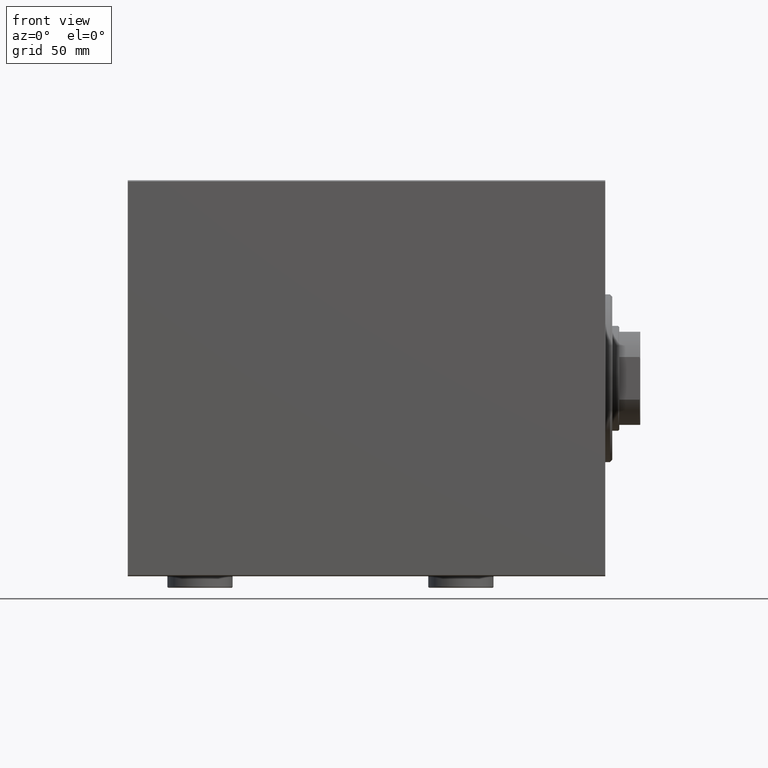
[diagram: clean part render]
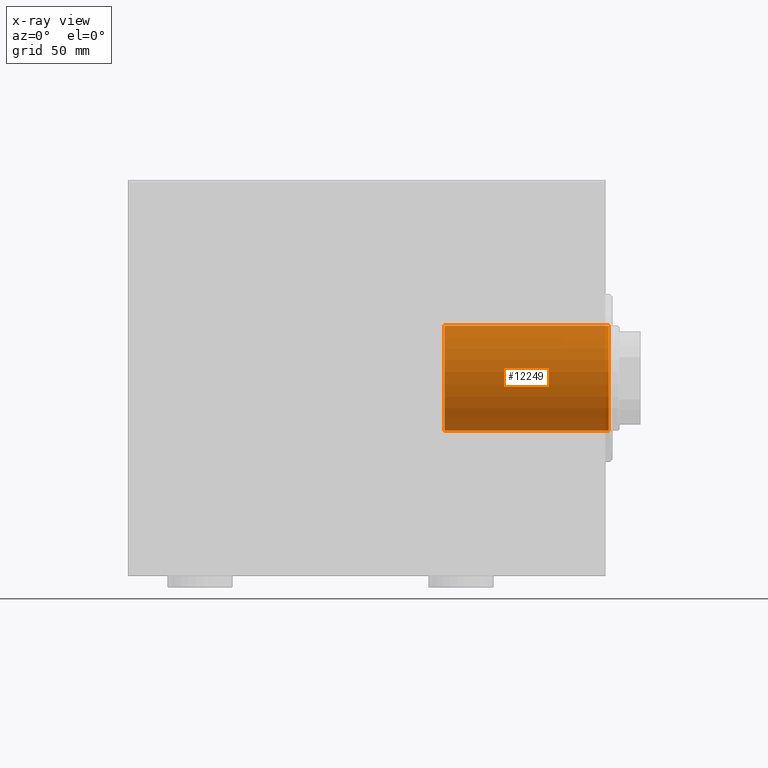
[diagram: x-ray — body ghosted, one internal face saturated and labeled with its STEP entity id]
A machine part, front view, then the same camera in x-ray: the body is ghosted and one INTERNAL B-rep face — a face not visible from any outside direction — is saturated and labeled: STEP entity #12249.
In plain terms, the highlighted cylindrical surface (partial cylindrical patch) has radius 22.5 mm, axis along (1, 0, 0).
Its self-contained STEP definition (entity closure, byte-faithful):
#26 = DIRECTION ( 'NONE',  ( 1.000000000000000000, 0.000000000000000000, 0.000000000000000000 ) ) ;
#36 = CARTESIAN_POINT ( 'NONE',  ( 1.500000000000001332, 0.000000000000000000, -22.50000000000000355 ) ) ;
#1530 = DIRECTION ( 'NONE',  ( 0.000000000000000000, 0.000000000000000000, -1.000000000000000000 ) ) ;
#3075 = DIRECTION ( 'NONE',  ( 0.000000000000000000, 0.000000000000000000, -1.000000000000000000 ) ) ;
#3164 = EDGE_CURVE ( 'NONE', #43630, #16437, #16630, .T. ) ;
#4361 = EDGE_LOOP ( 'NONE', ( #16699, #12384, #22781, #8400 ) ) ;
#4662 = CIRCLE ( 'NONE', #41219, 22.50000000000000355 ) ;
#5435 = DIRECTION ( 'NONE',  ( 0.000000000000000000, 0.000000000000000000, -1.000000000000000000 ) ) ;
#5627 = AXIS2_PLACEMENT_3D ( 'NONE', #24543, #26, #3075 ) ;
#6667 = VECTOR ( 'NONE', #29401, 1000.000000000000000 ) ;
#8400 = ORIENTED_EDGE ( 'NONE', *, *, #42916, .F. ) ;
#9403 = CYLINDRICAL_SURFACE ( 'NONE', #39531, 22.50000000000000355 ) ;
#12249 = ADVANCED_FACE ( 'NONE', ( #36759 ), #9403, .F. ) ;
#12384 = ORIENTED_EDGE ( 'NONE', *, *, #3164, .T. ) ;
#16437 = VERTEX_POINT ( 'NONE', #20185 ) ;
#16630 = LINE ( 'NONE', #34161, #17604 ) ;
#16699 = ORIENTED_EDGE ( 'NONE', *, *, #28959, .F. ) ;
#17604 = VECTOR ( 'NONE', #23630, 1000.000000000000000 ) ;
#17954 = CARTESIAN_POINT ( 'NONE',  ( -69.00000000000000000, 0.000000000000000000, -22.50000000000000355 ) ) ;
#18857 = EDGE_CURVE ( 'NONE', #16437, #31844, #4662, .T. ) ;
#20185 = CARTESIAN_POINT ( 'NONE',  ( 1.500000000000001332, 2.755455298081545172E-15, 22.50000000000000355 ) ) ;
#22594 = LINE ( 'NONE', #17954, #6667 ) ;
#22781 = ORIENTED_EDGE ( 'NONE', *, *, #18857, .T. ) ;
#23418 = VERTEX_POINT ( 'NONE', #36229 ) ;
#23630 = DIRECTION ( 'NONE',  ( 1.000000000000000000, -0.000000000000000000, -0.000000000000000000 ) ) ;
#24253 = CIRCLE ( 'NONE', #5627, 22.50000000000000355 ) ;
#24543 = CARTESIAN_POINT ( 'NONE',  ( -69.00000000000000000, 0.000000000000000000, 0.000000000000000000 ) ) ;
#26507 = DIRECTION ( 'NONE',  ( 1.000000000000000000, 0.000000000000000000, 0.000000000000000000 ) ) ;
#27321 = CARTESIAN_POINT ( 'NONE',  ( -69.00000000000000000, 2.755455298081545172E-15, 22.50000000000000355 ) ) ;
#28959 = EDGE_CURVE ( 'NONE', #43630, #23418, #24253, .T. ) ;
#29401 = DIRECTION ( 'NONE',  ( 1.000000000000000000, -0.000000000000000000, -0.000000000000000000 ) ) ;
#31844 = VERTEX_POINT ( 'NONE', #36 ) ;
#33701 = CARTESIAN_POINT ( 'NONE',  ( -69.00000000000000000, 0.000000000000000000, 0.000000000000000000 ) ) ;
#34161 = CARTESIAN_POINT ( 'NONE',  ( -69.00000000000000000, 2.755455298081545172E-15, 22.50000000000000355 ) ) ;
#36229 = CARTESIAN_POINT ( 'NONE',  ( -69.00000000000000000, 0.000000000000000000, -22.50000000000000355 ) ) ;
#36759 = FACE_OUTER_BOUND ( 'NONE', #4361, .T. ) ;
#39531 = AXIS2_PLACEMENT_3D ( 'NONE', #33701, #41429, #5435 ) ;
#41219 = AXIS2_PLACEMENT_3D ( 'NONE', #44087, #26507, #1530 ) ;
#41429 = DIRECTION ( 'NONE',  ( 1.000000000000000000, -0.000000000000000000, -0.000000000000000000 ) ) ;
#42916 = EDGE_CURVE ( 'NONE', #23418, #31844, #22594, .T. ) ;
#43630 = VERTEX_POINT ( 'NONE', #27321 ) ;
#44087 = CARTESIAN_POINT ( 'NONE',  ( 1.500000000000001332, 0.000000000000000000, 0.000000000000000000 ) ) ;